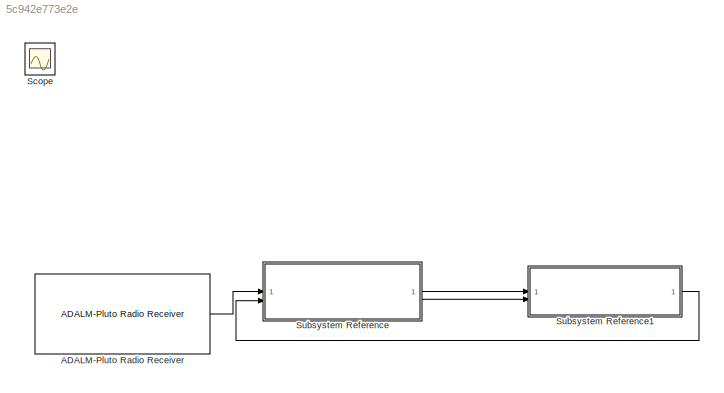
MODEL slx_5c942e773e2e
KIND model
CONFIG AbsTol = auto
CONFIG EnableMultiTasking = off
CONFIG FixedStep = auto
CONFIG MaxStep = auto
CONFIG MinStep = auto
CONFIG RelTol = 1e-3
CONFIG SampleTimeConstraint = Unconstrained
CONFIG SolverName = FixedStepAuto
CONFIG StartTime = 0.0
CONFIG StopTime = inf
BLOCK [Reference] ADALM-Pluto Radio Receiver  REF=plutoradiolib/ADALM-Pluto Radio
Receiver
  SourceBlock = plutoradiolib/ADALM-Pluto Radio\nReceiver
  SourceType = comm.SDRRxPluto
BLOCK [Scope] Scope
  Floating = off
  IOType = viewer
  NumInputPorts = 1
  ScopeSpecificationString = Simulink.scopes.TimeScopeBlockCfg('CurrentConfiguration', extmgr.ConfigurationSet(extmgr.Configuration('Core','General UI',true),extmgr.Configuration('Core','Source UI',true),extmgr.Configuration('Sources','WiredSimulink',true),extmgr.Configuration('Visuals','Time Domain',true,'SerializedDisplays',{struct('MinYLimReal','17.50101','MaxYLimReal','25.95076','YLabelReal','','MinYLimMag','17.50101','Ma...<+1509ch>
BLOCK [SubSystem] Subsystem Reference
  ReferencedSubsystem = bare_recv_QPSK
BLOCK [SubSystem] Subsystem Reference1
  ReferencedSubsystem = test_received_frames
LINE ADALM-Pluto Radio Receiver:1 -> Subsystem Reference:1
LINE Subsystem Reference1:1 -> Subsystem Reference:2
LINE Subsystem Reference:1 -> Subsystem Reference1:1
LINE Subsystem Reference:2 -> Subsystem Reference1:2
